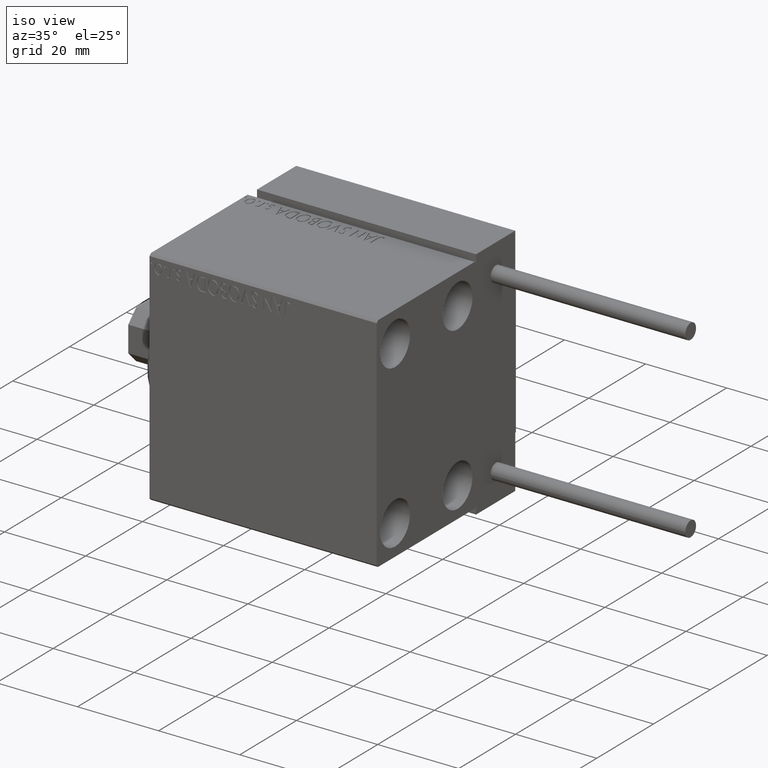
[diagram: clean part render]
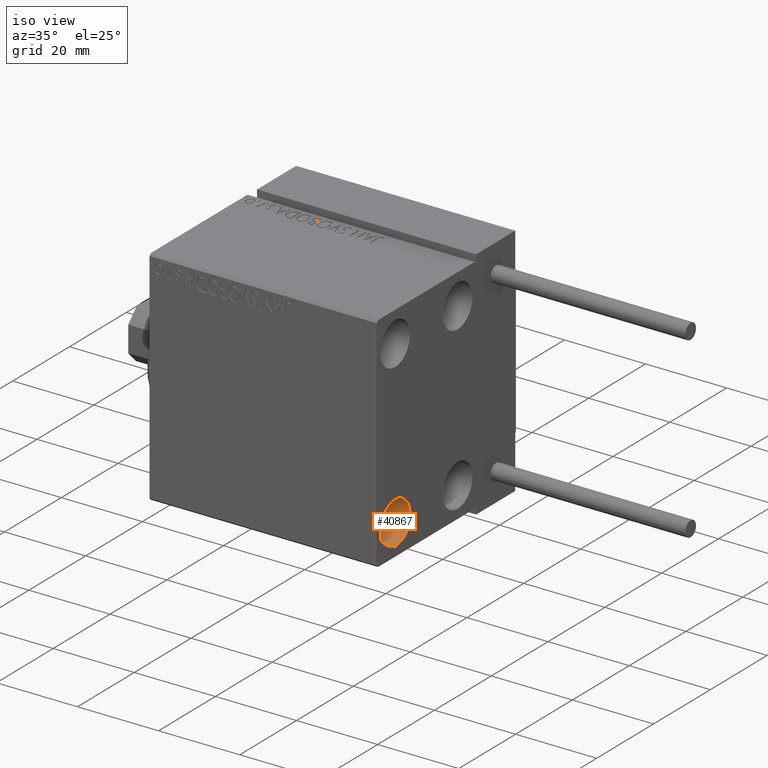
[diagram: same view with one face highlighted and labeled with its STEP entity id]
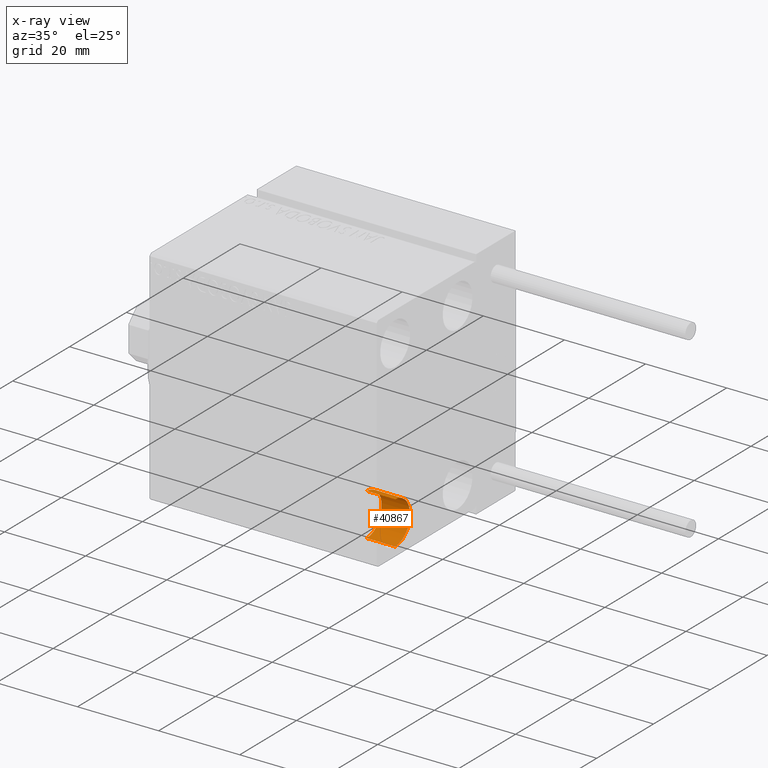
[diagram: x-ray of the same camera — body ghosted, the highlighted face saturated]
A machine part, iso view. The second image highlights one B-rep face of the part: STEP entity #40867.
The next image is the same camera in x-ray: the body ghosted, the highlighted face saturated — about 0% of this face is hidden behind the body in this view.
In plain terms, the highlighted cylindrical surface (edge-blend (fillet) strip) has radius 5.25 mm, axis along (1, 0, 0).
Its self-contained STEP definition (entity closure, byte-faithful):
#351 = CARTESIAN_POINT ( 'NONE',  ( 49.00000000000000000, -11.00000000000000355, -14.75000000000000000 ) ) ;
#1007 = CIRCLE ( 'NONE', #37619, 5.250000000000000888 ) ;
#1907 = VERTEX_POINT ( 'NONE', #31020 ) ;
#2525 = CIRCLE ( 'NONE', #9026, 5.250000000000000888 ) ;
#2852 = CARTESIAN_POINT ( 'NONE',  ( 49.00000000000000000, -11.00000000000000355, -14.75000000000000000 ) ) ;
#3233 = DIRECTION ( 'NONE',  ( -1.000000000000000000, -0.000000000000000000, -0.000000000000000000 ) ) ;
#4741 = CYLINDRICAL_SURFACE ( 'NONE', #5924, 5.250000000000000888 ) ;
#5924 = AXIS2_PLACEMENT_3D ( 'NONE', #27458, #11633, #24137 ) ;
#7296 = CARTESIAN_POINT ( 'NONE',  ( 56.00000000000000000, -11.00000000000000355, -20.00000000000000000 ) ) ;
#8865 = DIRECTION ( 'NONE',  ( 1.000000000000000000, -0.000000000000000000, -0.000000000000000000 ) ) ;
#9026 = AXIS2_PLACEMENT_3D ( 'NONE', #7296, #3233, #18785 ) ;
#9107 = LINE ( 'NONE', #35661, #36218 ) ;
#10718 = VERTEX_POINT ( 'NONE', #47675 ) ;
#11633 = DIRECTION ( 'NONE',  ( 1.000000000000000000, -0.000000000000000000, -0.000000000000000000 ) ) ;
#12066 = CARTESIAN_POINT ( 'NONE',  ( 49.00000000000000000, -11.00000000000000355, -25.25000000000000000 ) ) ;
#12323 = DIRECTION ( 'NONE',  ( -1.000000000000000000, -0.000000000000000000, -0.000000000000000000 ) ) ;
#15477 = FACE_OUTER_BOUND ( 'NONE', #16952, .T. ) ;
#16952 = EDGE_LOOP ( 'NONE', ( #17464, #44451, #29062, #18230 ) ) ;
#17464 = ORIENTED_EDGE ( 'NONE', *, *, #19927, .F. ) ;
#18230 = ORIENTED_EDGE ( 'NONE', *, *, #33477, .F. ) ;
#18785 = DIRECTION ( 'NONE',  ( 0.000000000000000000, 0.000000000000000000, 1.000000000000000000 ) ) ;
#19927 = EDGE_CURVE ( 'NONE', #38577, #10718, #21982, .T. ) ;
#21982 = LINE ( 'NONE', #2852, #25036 ) ;
#24137 = DIRECTION ( 'NONE',  ( 0.000000000000000000, 0.000000000000000000, -1.000000000000000000 ) ) ;
#25036 = VECTOR ( 'NONE', #25798, 1000.000000000000000 ) ;
#25798 = DIRECTION ( 'NONE',  ( 1.000000000000000000, -0.000000000000000000, -0.000000000000000000 ) ) ;
#27458 = CARTESIAN_POINT ( 'NONE',  ( 49.00000000000000000, -11.00000000000000355, -20.00000000000000000 ) ) ;
#29062 = ORIENTED_EDGE ( 'NONE', *, *, #44431, .T. ) ;
#31020 = CARTESIAN_POINT ( 'NONE',  ( 56.00000000000000000, -11.00000000000000355, -25.25000000000000000 ) ) ;
#33477 = EDGE_CURVE ( 'NONE', #10718, #1907, #2525, .T. ) ;
#34775 = CARTESIAN_POINT ( 'NONE',  ( 49.00000000000000000, -11.00000000000000355, -20.00000000000000000 ) ) ;
#35661 = CARTESIAN_POINT ( 'NONE',  ( 49.00000000000000000, -11.00000000000000355, -25.25000000000000000 ) ) ;
#36218 = VECTOR ( 'NONE', #8865, 1000.000000000000000 ) ;
#37619 = AXIS2_PLACEMENT_3D ( 'NONE', #34775, #12323, #42655 ) ;
#38577 = VERTEX_POINT ( 'NONE', #351 ) ;
#40179 = EDGE_CURVE ( 'NONE', #38577, #42847, #1007, .T. ) ;
#40867 = ADVANCED_FACE ( 'NONE', ( #15477 ), #4741, .F. ) ;
#42655 = DIRECTION ( 'NONE',  ( 0.000000000000000000, 0.000000000000000000, 1.000000000000000000 ) ) ;
#42847 = VERTEX_POINT ( 'NONE', #12066 ) ;
#44431 = EDGE_CURVE ( 'NONE', #42847, #1907, #9107, .T. ) ;
#44451 = ORIENTED_EDGE ( 'NONE', *, *, #40179, .T. ) ;
#47675 = CARTESIAN_POINT ( 'NONE',  ( 56.00000000000000000, -11.00000000000000355, -14.75000000000000000 ) ) ;